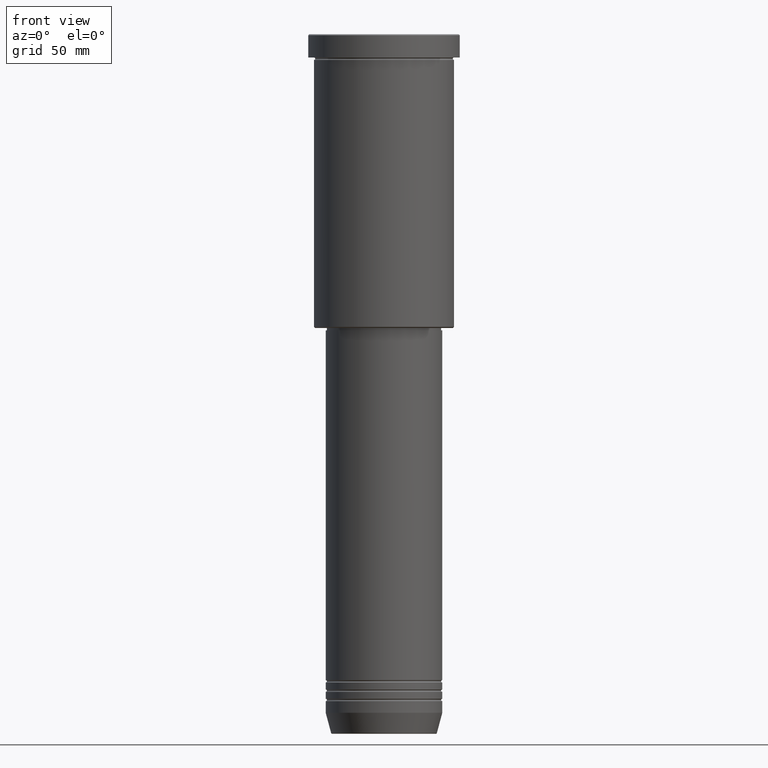
[diagram: clean part render]
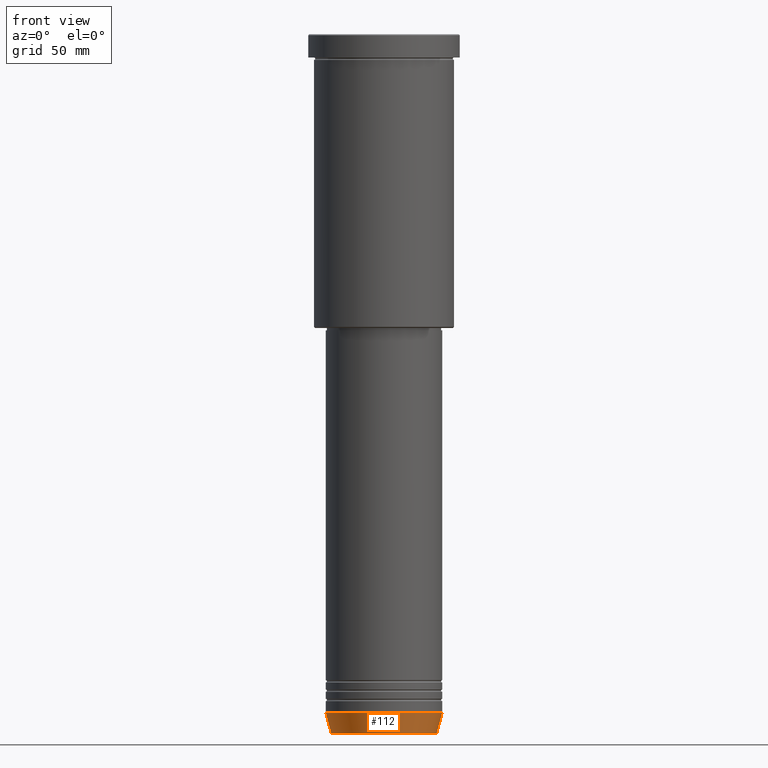
[diagram: same view with one face highlighted and labeled with its STEP entity id]
A machine part, front view. The second image highlights one B-rep face of the part: STEP entity #112.
In plain terms, the highlighted conical surface has half-angle 15 deg.
Its self-contained STEP definition (entity closure, byte-faithful):
#33 = CARTESIAN_POINT ( 'NONE',  ( -25.00000000000000000, 3.061616997868383043E-15, -291.0000000000000000 ) ) ;
#55 = CARTESIAN_POINT ( 'NONE',  ( 22.68775668727494477, 0.000000000000000000, -299.6294095225512137 ) ) ;
#61 = VERTEX_POINT ( 'NONE', #722 ) ;
#63 = DIRECTION ( 'NONE',  ( -0.000000000000000000, -0.000000000000000000, 1.000000000000000000 ) ) ;
#71 = ORIENTED_EDGE ( 'NONE', *, *, #704, .F. ) ;
#112 = ADVANCED_FACE ( 'NONE', ( #1129 ), #720, .T. ) ;
#191 = EDGE_CURVE ( 'NONE', #61, #974, #1074, .T. ) ;
#212 = DIRECTION ( 'NONE',  ( 1.000000000000000000, 0.000000000000000000, 0.000000000000000000 ) ) ;
#228 = DIRECTION ( 'NONE',  ( -0.2588190451025215166, 3.169619151431774802E-17, 0.9659258262890679791 ) ) ;
#299 = LINE ( 'NONE', #1041, #814 ) ;
#309 = DIRECTION ( 'NONE',  ( -0.000000000000000000, -0.000000000000000000, 1.000000000000000000 ) ) ;
#344 = EDGE_CURVE ( 'NONE', #974, #466, #1180, .T. ) ;
#360 = VECTOR ( 'NONE', #1165, 1000.000000000000114 ) ;
#402 = AXIS2_PLACEMENT_3D ( 'NONE', #980, #63, #804 ) ;
#428 = CARTESIAN_POINT ( 'NONE',  ( 0.000000000000000000, 0.000000000000000000, -291.0000000000000000 ) ) ;
#453 = ORIENTED_EDGE ( 'NONE', *, *, #957, .F. ) ;
#466 = VERTEX_POINT ( 'NONE', #669 ) ;
#480 = DIRECTION ( 'NONE',  ( -0.000000000000000000, -0.000000000000000000, 1.000000000000000000 ) ) ;
#550 = CARTESIAN_POINT ( 'NONE',  ( 25.00000000000000000, 0.000000000000000000, -291.0000000000000000 ) ) ;
#585 = ORIENTED_EDGE ( 'NONE', *, *, #191, .T. ) ;
#669 = CARTESIAN_POINT ( 'NONE',  ( 25.00000000000000000, 0.000000000000000000, -291.0000000000000000 ) ) ;
#704 = EDGE_CURVE ( 'NONE', #991, #466, #885, .T. ) ;
#720 = CONICAL_SURFACE ( 'NONE', #887, 25.00000000000000000, 0.2617993877991502960 ) ;
#722 = CARTESIAN_POINT ( 'NONE',  ( -22.68775668727494477, 2.920032929279452581E-15, -299.6294095225512137 ) ) ;
#747 = CARTESIAN_POINT ( 'NONE',  ( 0.000000000000000000, 0.000000000000000000, -291.0000000000000000 ) ) ;
#804 = DIRECTION ( 'NONE',  ( 1.000000000000000000, 0.000000000000000000, 0.000000000000000000 ) ) ;
#814 = VECTOR ( 'NONE', #228, 1000.000000000000114 ) ;
#819 = EDGE_LOOP ( 'NONE', ( #453, #585, #858, #71 ) ) ;
#858 = ORIENTED_EDGE ( 'NONE', *, *, #344, .T. ) ;
#885 = CIRCLE ( 'NONE', #1069, 25.00000000000000000 ) ;
#887 = AXIS2_PLACEMENT_3D ( 'NONE', #428, #309, #212 ) ;
#957 = EDGE_CURVE ( 'NONE', #61, #991, #299, .T. ) ;
#974 = VERTEX_POINT ( 'NONE', #55 ) ;
#980 = CARTESIAN_POINT ( 'NONE',  ( 0.000000000000000000, 0.000000000000000000, -299.6294095225512137 ) ) ;
#991 = VERTEX_POINT ( 'NONE', #33 ) ;
#1004 = DIRECTION ( 'NONE',  ( 1.000000000000000000, 0.000000000000000000, 0.000000000000000000 ) ) ;
#1041 = CARTESIAN_POINT ( 'NONE',  ( -25.00000000000000000, 3.061616997868383043E-15, -291.0000000000000000 ) ) ;
#1069 = AXIS2_PLACEMENT_3D ( 'NONE', #747, #480, #1004 ) ;
#1074 = CIRCLE ( 'NONE', #402, 22.68775668727494477 ) ;
#1129 = FACE_OUTER_BOUND ( 'NONE', #819, .T. ) ;
#1165 = DIRECTION ( 'NONE',  ( 0.2588190451025215166, 0.000000000000000000, 0.9659258262890679791 ) ) ;
#1180 = LINE ( 'NONE', #550, #360 ) ;